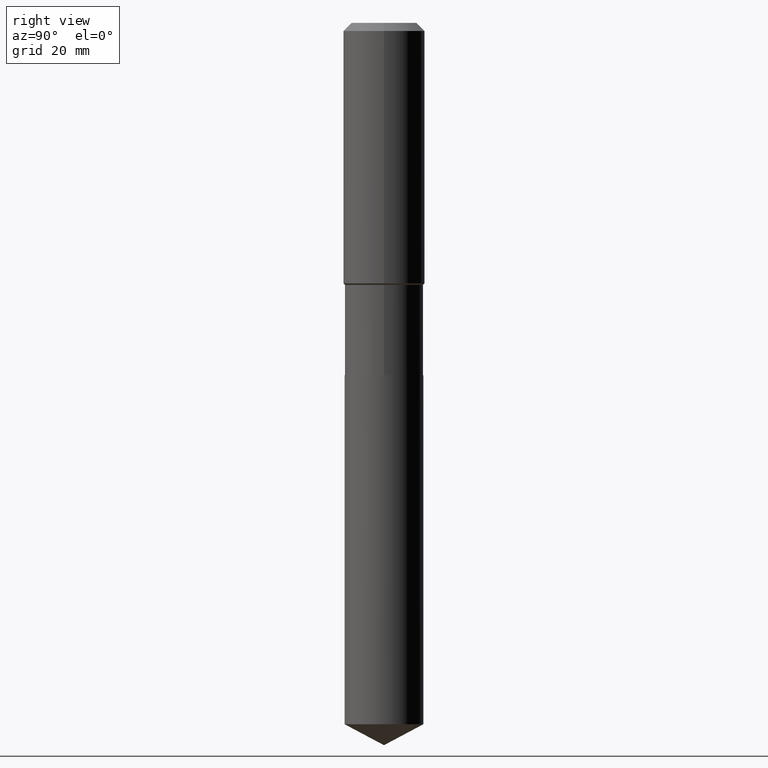
[diagram: clean part render]
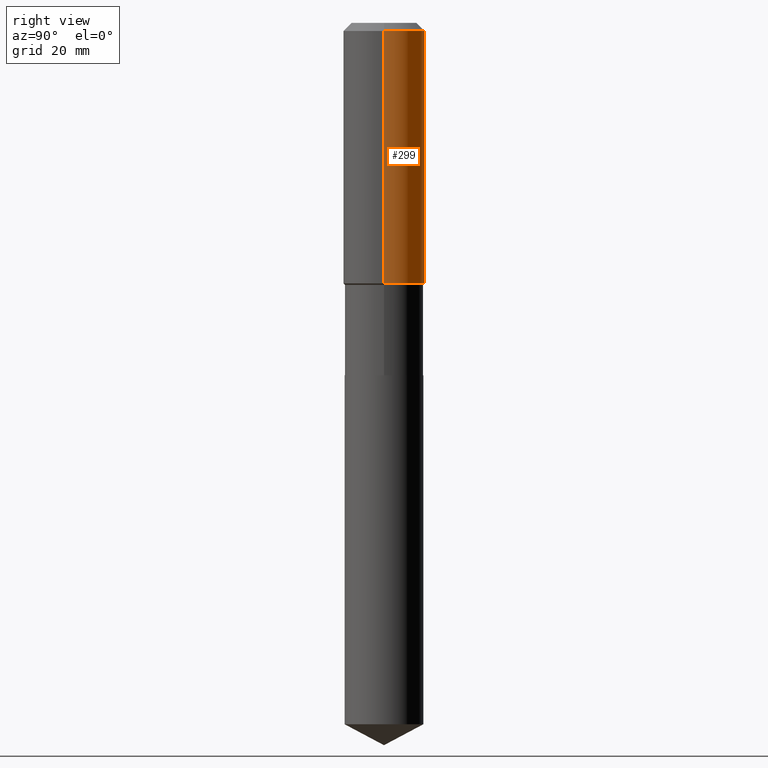
[diagram: same view with one face highlighted and labeled with its STEP entity id]
A machine part, right view. The second image highlights one B-rep face of the part: STEP entity #299.
In plain terms, the highlighted cylindrical surface (partial cylindrical patch) has radius 7.0002 mm, axis along (-0, 0, 1).
Its self-contained STEP definition (entity closure, byte-faithful):
#1 = DIRECTION ( 'NONE',  ( -2.445468806185136877E-29, 3.491481338843145188E-15, 1.000000000000000000 ) ) ;
#13 = EDGE_CURVE ( 'NONE', #464, #216, #399, .T. ) ;
#23 = EDGE_CURVE ( 'NONE', #74, #302, #382, .T. ) ;
#39 = ORIENTED_EDGE ( 'NONE', *, *, #163, .F. ) ;
#56 = CIRCLE ( 'NONE', #211, 0.2756000000000002337 ) ;
#68 = DIRECTION ( 'NONE',  ( 1.000000000000000000, -6.982962677686265922E-15, 0.000000000000000000 ) ) ;
#74 = VERTEX_POINT ( 'NONE', #410 ) ;
#84 = DIRECTION ( 'NONE',  ( 1.000000000000000000, -6.982962677686267499E-15, 0.000000000000000000 ) ) ;
#100 = CIRCLE ( 'NONE', #372, 0.2756000000000000116 ) ;
#105 = CARTESIAN_POINT ( 'NONE',  ( 1.347942405969256063E-30, -1.924504513970354330E-16, -0.05512000000000035621 ) ) ;
#108 = DIRECTION ( 'NONE',  ( -2.445468806185136597E-29, 3.491481338843145583E-15, 1.000000000000000000 ) ) ;
#133 = DIRECTION ( 'NONE',  ( -2.445468806185136597E-29, 3.491481338843145583E-15, 1.000000000000000000 ) ) ;
#145 = EDGE_LOOP ( 'NONE', ( #478, #279, #39, #313 ) ) ;
#163 = EDGE_CURVE ( 'NONE', #302, #216, #100, .T. ) ;
#211 = AXIS2_PLACEMENT_3D ( 'NONE', #480, #133, #84 ) ;
#216 = VERTEX_POINT ( 'NONE', #476 ) ;
#233 = VECTOR ( 'NONE', #346, 39.37007874015748143 ) ;
#274 = FACE_OUTER_BOUND ( 'NONE', #145, .T. ) ;
#279 = ORIENTED_EDGE ( 'NONE', *, *, #13, .T. ) ;
#280 = VECTOR ( 'NONE', #1, 39.37007874015748143 ) ;
#299 = ADVANCED_FACE ( 'NONE', ( #274 ), #473, .T. ) ;
#302 = VERTEX_POINT ( 'NONE', #343 ) ;
#313 = ORIENTED_EDGE ( 'NONE', *, *, #23, .F. ) ;
#323 = DIRECTION ( 'NONE',  ( 1.000000000000000000, -6.982962677686267499E-15, 4.876176775795935793E-29 ) ) ;
#342 = CARTESIAN_POINT ( 'NONE',  ( -0.2756000000000001227, 1.958255779754836984E-15, -1.355658510874252567E-29 ) ) ;
#343 = CARTESIAN_POINT ( 'NONE',  ( 0.2756000000000000116, -2.116954965367370658E-15, -0.05512000000000035621 ) ) ;
#346 = DIRECTION ( 'NONE',  ( -2.445468806185136877E-29, 3.491481338843145188E-15, 1.000000000000000000 ) ) ;
#351 = CARTESIAN_POINT ( 'NONE',  ( -0.2756000000000002337, -4.189719135747111948E-15, -1.760849999999999138 ) ) ;
#372 = AXIS2_PLACEMENT_3D ( 'NONE', #105, #108, #68 ) ;
#379 = AXIS2_PLACEMENT_3D ( 'NONE', #440, #407, #323 ) ;
#382 = LINE ( 'NONE', #429, #233 ) ;
#399 = LINE ( 'NONE', #342, #280 ) ;
#407 = DIRECTION ( 'NONE',  ( -2.445468806185136597E-29, 3.491481338843145583E-15, 1.000000000000000000 ) ) ;
#410 = CARTESIAN_POINT ( 'NONE',  ( 0.2756000000000002337, -8.072479429472285858E-15, -1.760849999999999138 ) ) ;
#411 = EDGE_CURVE ( 'NONE', #74, #464, #56, .T. ) ;
#429 = CARTESIAN_POINT ( 'NONE',  ( 0.2756000000000001227, -1.924504513970336137E-15, 1.343874319409360548E-29 ) ) ;
#440 = CARTESIAN_POINT ( 'NONE',  ( 0.000000000000000000, 0.000000000000000000, 0.000000000000000000 ) ) ;
#464 = VERTEX_POINT ( 'NONE', #351 ) ;
#473 = CYLINDRICAL_SURFACE ( 'NONE', #379, 0.2756000000000001227 ) ;
#476 = CARTESIAN_POINT ( 'NONE',  ( -0.2756000000000000116, -1.211956903694655137E-15, -0.05512000000000035621 ) ) ;
#478 = ORIENTED_EDGE ( 'NONE', *, *, #411, .T. ) ;
#480 = CARTESIAN_POINT ( 'NONE',  ( 4.306103747371095774E-29, -6.147974915501949326E-15, -1.760849999999999138 ) ) ;